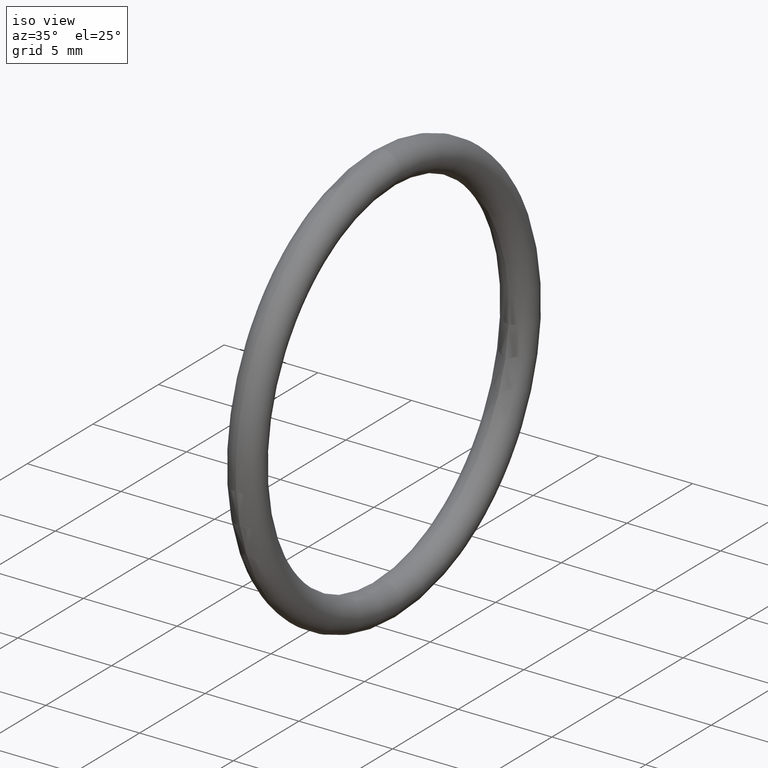
[diagram: clean part render]
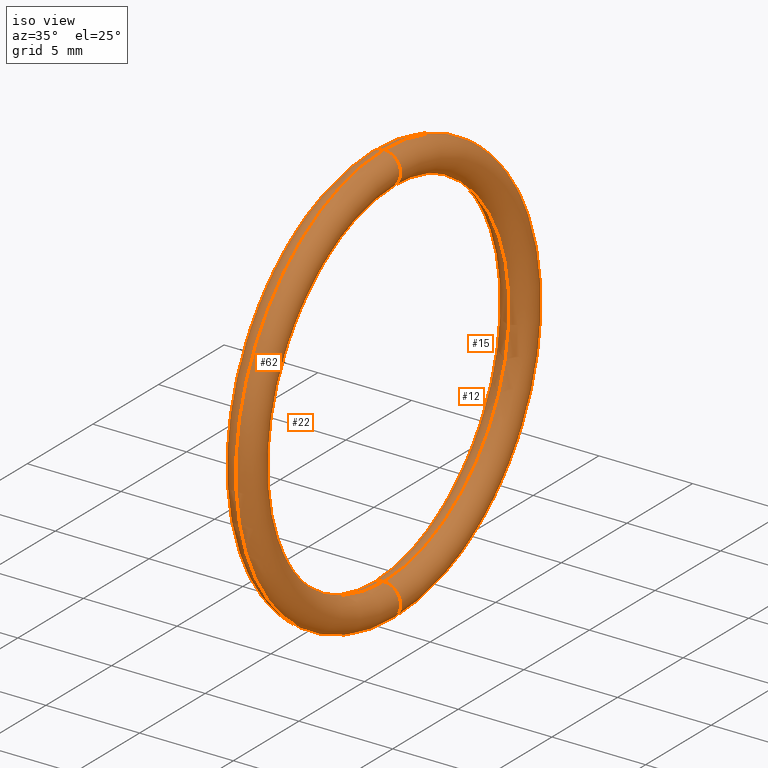
[diagram: same view with one multi-face feature highlighted, each face labeled with its STEP entity id]
A machine part, iso view. The highlighted faces form ONE feature: a constant-radius fillet chain: 4 tangent blend faces with common blend radius 0.889 mm. The faces share edges in the B-rep.
Their STEP definitions:
[1] entity #12 (Torus):
#2 = DIRECTION ( 'NONE',  ( 0.0000000000000000000, 0.0000000000000000000, 1.000000000000000000 ) ) ;
#3 = DIRECTION ( 'NONE',  ( -1.000000000000000000, 0.0000000000000000000, 0.0000000000000000000 ) ) ;
#4 = AXIS2_PLACEMENT_3D ( 'NONE', #11, #3, #2 ) ;
#5 = CIRCLE ( 'NONE', #4, 0.3750000000000000600 ) ;
#11 = CARTESIAN_POINT ( 'NONE',  ( 0.1000000000000000600, 0.0000000000000000000, 0.0000000000000000000 ) ) ;
#12 = ADVANCED_FACE ( 'NONE', ( #95 ), #92, .T. ) ;
#13 = EDGE_LOOP ( 'NONE', ( #31, #30, #105, #106 ) ) ;
#14 = VERTEX_POINT ( 'NONE', #93 ) ;
#18 = EDGE_CURVE ( 'NONE', #14, #109, #5, .T. ) ;
#29 = VERTEX_POINT ( 'NONE', #69 ) ;
#30 = ORIENTED_EDGE ( 'NONE', *, *, #99, .T. ) ;
#31 = ORIENTED_EDGE ( 'NONE', *, *, #100, .F. ) ;
#34 = CARTESIAN_POINT ( 'NONE',  ( 0.1000000000000000600, 5.449678256205721400E-017, -0.4449999999999999500 ) ) ;
#35 = CARTESIAN_POINT ( 'NONE',  ( 0.1000000000000000600, 4.592425496802574200E-017, -0.3750000000000000600 ) ) ;
#41 = DIRECTION ( 'NONE',  ( 0.0000000000000000000, 0.0000000000000000000, -1.000000000000000000 ) ) ;
#42 = DIRECTION ( 'NONE',  ( 0.0000000000000000000, -1.000000000000000000, 0.0000000000000000000 ) ) ;
#43 = CARTESIAN_POINT ( 'NONE',  ( 0.1000000000000000600, 0.0000000000000000000, 0.4099999999999999800 ) ) ;
#44 = AXIS2_PLACEMENT_3D ( 'NONE', #43, #42, #41 ) ;
#45 = CIRCLE ( 'NONE', #44, 0.03499999999999996900 ) ;
#46 = DIRECTION ( 'NONE',  ( 0.0000000000000000000, 0.0000000000000000000, 1.000000000000000000 ) ) ;
#47 = DIRECTION ( 'NONE',  ( -1.000000000000000000, 0.0000000000000000000, 0.0000000000000000000 ) ) ;
#48 = CARTESIAN_POINT ( 'NONE',  ( 0.1000000000000000600, 0.0000000000000000000, 0.0000000000000000000 ) ) ;
#49 = AXIS2_PLACEMENT_3D ( 'NONE', #48, #47, #46 ) ;
#50 = CIRCLE ( 'NONE', #49, 0.4449999999999999500 ) ;
#60 = EDGE_CURVE ( 'NONE', #110, #109, #81, .T. ) ;
#69 = CARTESIAN_POINT ( 'NONE',  ( 0.1000000000000000600, 0.0000000000000000000, 0.4449999999999999500 ) ) ;
#77 = DIRECTION ( 'NONE',  ( 0.0000000000000000000, -1.224646799147354900E-016, 1.000000000000000000 ) ) ;
#78 = DIRECTION ( 'NONE',  ( 0.0000000000000000000, 1.000000000000000000, 1.224646799147353200E-016 ) ) ;
#79 = CARTESIAN_POINT ( 'NONE',  ( 0.1000000000000000600, 5.021051876504148100E-017, -0.4099999999999999800 ) ) ;
#80 = AXIS2_PLACEMENT_3D ( 'NONE', #79, #78, #77 ) ;
#81 = CIRCLE ( 'NONE', #80, 0.03499999999999996900 ) ;
#89 = DIRECTION ( 'NONE',  ( 0.0000000000000000000, 0.0000000000000000000, 1.000000000000000000 ) ) ;
#90 = DIRECTION ( 'NONE',  ( -1.000000000000000000, 0.0000000000000000000, 0.0000000000000000000 ) ) ;
#91 = AXIS2_PLACEMENT_3D ( 'NONE', #94, #90, #89 ) ;
#92 = TOROIDAL_SURFACE ( 'NONE', #91, 0.4099999999999999800, 0.03499999999999998300 ) ;
#93 = CARTESIAN_POINT ( 'NONE',  ( 0.1000000000000000600, 0.0000000000000000000, 0.3750000000000000600 ) ) ;
#94 = CARTESIAN_POINT ( 'NONE',  ( 0.1000000000000000600, 0.0000000000000000000, 0.0000000000000000000 ) ) ;
#95 = FACE_OUTER_BOUND ( 'NONE', #13, .T. ) ;
#99 = EDGE_CURVE ( 'NONE', #29, #110, #50, .T. ) ;
#100 = EDGE_CURVE ( 'NONE', #29, #14, #45, .T. ) ;
#105 = ORIENTED_EDGE ( 'NONE', *, *, #60, .T. ) ;
#106 = ORIENTED_EDGE ( 'NONE', *, *, #18, .F. ) ;
#109 = VERTEX_POINT ( 'NONE', #35 ) ;
#110 = VERTEX_POINT ( 'NONE', #34 ) ;
[2] entity #15 (Torus):
#1 = CARTESIAN_POINT ( 'NONE',  ( 0.1000000000000000600, 5.021051876504148100E-017, -0.4099999999999999800 ) ) ;
#2 = DIRECTION ( 'NONE',  ( 0.0000000000000000000, 0.0000000000000000000, 1.000000000000000000 ) ) ;
#3 = DIRECTION ( 'NONE',  ( -1.000000000000000000, 0.0000000000000000000, 0.0000000000000000000 ) ) ;
#4 = AXIS2_PLACEMENT_3D ( 'NONE', #11, #3, #2 ) ;
#5 = CIRCLE ( 'NONE', #4, 0.3750000000000000600 ) ;
#11 = CARTESIAN_POINT ( 'NONE',  ( 0.1000000000000000600, 0.0000000000000000000, 0.0000000000000000000 ) ) ;
#14 = VERTEX_POINT ( 'NONE', #93 ) ;
#15 = ADVANCED_FACE ( 'NONE', ( #88 ), #86, .T. ) ;
#18 = EDGE_CURVE ( 'NONE', #14, #109, #5, .T. ) ;
#19 = ORIENTED_EDGE ( 'NONE', *, *, #18, .T. ) ;
#20 = ORIENTED_EDGE ( 'NONE', *, *, #21, .T. ) ;
#21 = EDGE_CURVE ( 'NONE', #109, #110, #74, .T. ) ;
#29 = VERTEX_POINT ( 'NONE', #69 ) ;
#34 = CARTESIAN_POINT ( 'NONE',  ( 0.1000000000000000600, 5.449678256205721400E-017, -0.4449999999999999500 ) ) ;
#35 = CARTESIAN_POINT ( 'NONE',  ( 0.1000000000000000600, 4.592425496802574200E-017, -0.3750000000000000600 ) ) ;
#36 = DIRECTION ( 'NONE',  ( 0.0000000000000000000, 0.0000000000000000000, -1.000000000000000000 ) ) ;
#37 = DIRECTION ( 'NONE',  ( 0.0000000000000000000, -1.000000000000000000, 0.0000000000000000000 ) ) ;
#38 = CARTESIAN_POINT ( 'NONE',  ( 0.1000000000000000600, 0.0000000000000000000, 0.4099999999999999800 ) ) ;
#39 = AXIS2_PLACEMENT_3D ( 'NONE', #38, #37, #36 ) ;
#40 = CIRCLE ( 'NONE', #39, 0.03499999999999996900 ) ;
#46 = DIRECTION ( 'NONE',  ( 0.0000000000000000000, 0.0000000000000000000, 1.000000000000000000 ) ) ;
#47 = DIRECTION ( 'NONE',  ( -1.000000000000000000, 0.0000000000000000000, 0.0000000000000000000 ) ) ;
#48 = CARTESIAN_POINT ( 'NONE',  ( 0.1000000000000000600, 0.0000000000000000000, 0.0000000000000000000 ) ) ;
#49 = AXIS2_PLACEMENT_3D ( 'NONE', #48, #47, #46 ) ;
#50 = CIRCLE ( 'NONE', #49, 0.4449999999999999500 ) ;
#69 = CARTESIAN_POINT ( 'NONE',  ( 0.1000000000000000600, 0.0000000000000000000, 0.4449999999999999500 ) ) ;
#71 = DIRECTION ( 'NONE',  ( 0.0000000000000000000, -1.224646799147354900E-016, 1.000000000000000000 ) ) ;
#72 = DIRECTION ( 'NONE',  ( 0.0000000000000000000, 1.000000000000000000, 1.224646799147353200E-016 ) ) ;
#73 = AXIS2_PLACEMENT_3D ( 'NONE', #1, #72, #71 ) ;
#74 = CIRCLE ( 'NONE', #73, 0.03499999999999996900 ) ;
#83 = DIRECTION ( 'NONE',  ( 0.0000000000000000000, 0.0000000000000000000, 1.000000000000000000 ) ) ;
#84 = DIRECTION ( 'NONE',  ( -1.000000000000000000, 0.0000000000000000000, 0.0000000000000000000 ) ) ;
#85 = AXIS2_PLACEMENT_3D ( 'NONE', #87, #84, #83 ) ;
#86 = TOROIDAL_SURFACE ( 'NONE', #85, 0.4099999999999999800, 0.03499999999999998300 ) ;
#87 = CARTESIAN_POINT ( 'NONE',  ( 0.1000000000000000600, 0.0000000000000000000, 0.0000000000000000000 ) ) ;
#88 = FACE_OUTER_BOUND ( 'NONE', #107, .T. ) ;
#93 = CARTESIAN_POINT ( 'NONE',  ( 0.1000000000000000600, 0.0000000000000000000, 0.3750000000000000600 ) ) ;
#99 = EDGE_CURVE ( 'NONE', #29, #110, #50, .T. ) ;
#101 = ORIENTED_EDGE ( 'NONE', *, *, #99, .F. ) ;
#102 = ORIENTED_EDGE ( 'NONE', *, *, #103, .F. ) ;
#103 = EDGE_CURVE ( 'NONE', #14, #29, #40, .T. ) ;
#107 = EDGE_LOOP ( 'NONE', ( #101, #102, #19, #20 ) ) ;
#109 = VERTEX_POINT ( 'NONE', #35 ) ;
#110 = VERTEX_POINT ( 'NONE', #34 ) ;
[3] entity #22 (Torus):
#1 = CARTESIAN_POINT ( 'NONE',  ( 0.1000000000000000600, 5.021051876504148100E-017, -0.4099999999999999800 ) ) ;
#6 = DIRECTION ( 'NONE',  ( 0.0000000000000000000, 0.0000000000000000000, 1.000000000000000000 ) ) ;
#7 = DIRECTION ( 'NONE',  ( -1.000000000000000000, 0.0000000000000000000, 0.0000000000000000000 ) ) ;
#8 = CARTESIAN_POINT ( 'NONE',  ( 0.1000000000000000600, 0.0000000000000000000, 0.0000000000000000000 ) ) ;
#9 = AXIS2_PLACEMENT_3D ( 'NONE', #8, #7, #6 ) ;
#10 = CIRCLE ( 'NONE', #9, 0.3750000000000000600 ) ;
#14 = VERTEX_POINT ( 'NONE', #93 ) ;
#16 = EDGE_CURVE ( 'NONE', #109, #14, #10, .T. ) ;
#21 = EDGE_CURVE ( 'NONE', #109, #110, #74, .T. ) ;
#22 = ADVANCED_FACE ( 'NONE', ( #75 ), #68, .T. ) ;
#23 = EDGE_LOOP ( 'NONE', ( #24, #25, #26, #27 ) ) ;
#24 = ORIENTED_EDGE ( 'NONE', *, *, #98, .F. ) ;
#25 = ORIENTED_EDGE ( 'NONE', *, *, #21, .F. ) ;
#26 = ORIENTED_EDGE ( 'NONE', *, *, #16, .T. ) ;
#27 = ORIENTED_EDGE ( 'NONE', *, *, #103, .T. ) ;
#29 = VERTEX_POINT ( 'NONE', #69 ) ;
#34 = CARTESIAN_POINT ( 'NONE',  ( 0.1000000000000000600, 5.449678256205721400E-017, -0.4449999999999999500 ) ) ;
#35 = CARTESIAN_POINT ( 'NONE',  ( 0.1000000000000000600, 4.592425496802574200E-017, -0.3750000000000000600 ) ) ;
#36 = DIRECTION ( 'NONE',  ( 0.0000000000000000000, 0.0000000000000000000, -1.000000000000000000 ) ) ;
#37 = DIRECTION ( 'NONE',  ( 0.0000000000000000000, -1.000000000000000000, 0.0000000000000000000 ) ) ;
#38 = CARTESIAN_POINT ( 'NONE',  ( 0.1000000000000000600, 0.0000000000000000000, 0.4099999999999999800 ) ) ;
#39 = AXIS2_PLACEMENT_3D ( 'NONE', #38, #37, #36 ) ;
#40 = CIRCLE ( 'NONE', #39, 0.03499999999999996900 ) ;
#51 = DIRECTION ( 'NONE',  ( 0.0000000000000000000, 0.0000000000000000000, 1.000000000000000000 ) ) ;
#52 = DIRECTION ( 'NONE',  ( -1.000000000000000000, 0.0000000000000000000, 0.0000000000000000000 ) ) ;
#53 = CARTESIAN_POINT ( 'NONE',  ( 0.1000000000000000600, 0.0000000000000000000, 0.0000000000000000000 ) ) ;
#54 = AXIS2_PLACEMENT_3D ( 'NONE', #53, #52, #51 ) ;
#55 = CIRCLE ( 'NONE', #54, 0.4449999999999999500 ) ;
#65 = DIRECTION ( 'NONE',  ( 0.0000000000000000000, 0.0000000000000000000, 1.000000000000000000 ) ) ;
#66 = DIRECTION ( 'NONE',  ( -1.000000000000000000, 0.0000000000000000000, 0.0000000000000000000 ) ) ;
#67 = AXIS2_PLACEMENT_3D ( 'NONE', #70, #66, #65 ) ;
#68 = TOROIDAL_SURFACE ( 'NONE', #67, 0.4099999999999999800, 0.03499999999999998300 ) ;
#69 = CARTESIAN_POINT ( 'NONE',  ( 0.1000000000000000600, 0.0000000000000000000, 0.4449999999999999500 ) ) ;
#70 = CARTESIAN_POINT ( 'NONE',  ( 0.1000000000000000600, 0.0000000000000000000, 0.0000000000000000000 ) ) ;
#71 = DIRECTION ( 'NONE',  ( 0.0000000000000000000, -1.224646799147354900E-016, 1.000000000000000000 ) ) ;
#72 = DIRECTION ( 'NONE',  ( 0.0000000000000000000, 1.000000000000000000, 1.224646799147353200E-016 ) ) ;
#73 = AXIS2_PLACEMENT_3D ( 'NONE', #1, #72, #71 ) ;
#74 = CIRCLE ( 'NONE', #73, 0.03499999999999996900 ) ;
#75 = FACE_OUTER_BOUND ( 'NONE', #23, .T. ) ;
#93 = CARTESIAN_POINT ( 'NONE',  ( 0.1000000000000000600, 0.0000000000000000000, 0.3750000000000000600 ) ) ;
#98 = EDGE_CURVE ( 'NONE', #110, #29, #55, .T. ) ;
#103 = EDGE_CURVE ( 'NONE', #14, #29, #40, .T. ) ;
#109 = VERTEX_POINT ( 'NONE', #35 ) ;
#110 = VERTEX_POINT ( 'NONE', #34 ) ;
[4] entity #62 (Torus):
#6 = DIRECTION ( 'NONE',  ( 0.0000000000000000000, 0.0000000000000000000, 1.000000000000000000 ) ) ;
#7 = DIRECTION ( 'NONE',  ( -1.000000000000000000, 0.0000000000000000000, 0.0000000000000000000 ) ) ;
#8 = CARTESIAN_POINT ( 'NONE',  ( 0.1000000000000000600, 0.0000000000000000000, 0.0000000000000000000 ) ) ;
#9 = AXIS2_PLACEMENT_3D ( 'NONE', #8, #7, #6 ) ;
#10 = CIRCLE ( 'NONE', #9, 0.3750000000000000600 ) ;
#14 = VERTEX_POINT ( 'NONE', #93 ) ;
#16 = EDGE_CURVE ( 'NONE', #109, #14, #10, .T. ) ;
#17 = ORIENTED_EDGE ( 'NONE', *, *, #16, .F. ) ;
#29 = VERTEX_POINT ( 'NONE', #69 ) ;
#34 = CARTESIAN_POINT ( 'NONE',  ( 0.1000000000000000600, 5.449678256205721400E-017, -0.4449999999999999500 ) ) ;
#35 = CARTESIAN_POINT ( 'NONE',  ( 0.1000000000000000600, 4.592425496802574200E-017, -0.3750000000000000600 ) ) ;
#41 = DIRECTION ( 'NONE',  ( 0.0000000000000000000, 0.0000000000000000000, -1.000000000000000000 ) ) ;
#42 = DIRECTION ( 'NONE',  ( 0.0000000000000000000, -1.000000000000000000, 0.0000000000000000000 ) ) ;
#43 = CARTESIAN_POINT ( 'NONE',  ( 0.1000000000000000600, 0.0000000000000000000, 0.4099999999999999800 ) ) ;
#44 = AXIS2_PLACEMENT_3D ( 'NONE', #43, #42, #41 ) ;
#45 = CIRCLE ( 'NONE', #44, 0.03499999999999996900 ) ;
#51 = DIRECTION ( 'NONE',  ( 0.0000000000000000000, 0.0000000000000000000, 1.000000000000000000 ) ) ;
#52 = DIRECTION ( 'NONE',  ( -1.000000000000000000, 0.0000000000000000000, 0.0000000000000000000 ) ) ;
#53 = CARTESIAN_POINT ( 'NONE',  ( 0.1000000000000000600, 0.0000000000000000000, 0.0000000000000000000 ) ) ;
#54 = AXIS2_PLACEMENT_3D ( 'NONE', #53, #52, #51 ) ;
#55 = CIRCLE ( 'NONE', #54, 0.4449999999999999500 ) ;
#56 = DIRECTION ( 'NONE',  ( 0.0000000000000000000, 0.0000000000000000000, 1.000000000000000000 ) ) ;
#57 = DIRECTION ( 'NONE',  ( -1.000000000000000000, 0.0000000000000000000, 0.0000000000000000000 ) ) ;
#58 = AXIS2_PLACEMENT_3D ( 'NONE', #76, #57, #56 ) ;
#59 = TOROIDAL_SURFACE ( 'NONE', #58, 0.4099999999999999800, 0.03499999999999998300 ) ;
#60 = EDGE_CURVE ( 'NONE', #110, #109, #81, .T. ) ;
#62 = ADVANCED_FACE ( 'NONE', ( #82 ), #59, .T. ) ;
#63 = EDGE_LOOP ( 'NONE', ( #111, #108, #104, #17 ) ) ;
#69 = CARTESIAN_POINT ( 'NONE',  ( 0.1000000000000000600, 0.0000000000000000000, 0.4449999999999999500 ) ) ;
#76 = CARTESIAN_POINT ( 'NONE',  ( 0.1000000000000000600, 0.0000000000000000000, 0.0000000000000000000 ) ) ;
#77 = DIRECTION ( 'NONE',  ( 0.0000000000000000000, -1.224646799147354900E-016, 1.000000000000000000 ) ) ;
#78 = DIRECTION ( 'NONE',  ( 0.0000000000000000000, 1.000000000000000000, 1.224646799147353200E-016 ) ) ;
#79 = CARTESIAN_POINT ( 'NONE',  ( 0.1000000000000000600, 5.021051876504148100E-017, -0.4099999999999999800 ) ) ;
#80 = AXIS2_PLACEMENT_3D ( 'NONE', #79, #78, #77 ) ;
#81 = CIRCLE ( 'NONE', #80, 0.03499999999999996900 ) ;
#82 = FACE_OUTER_BOUND ( 'NONE', #63, .T. ) ;
#93 = CARTESIAN_POINT ( 'NONE',  ( 0.1000000000000000600, 0.0000000000000000000, 0.3750000000000000600 ) ) ;
#98 = EDGE_CURVE ( 'NONE', #110, #29, #55, .T. ) ;
#100 = EDGE_CURVE ( 'NONE', #29, #14, #45, .T. ) ;
#104 = ORIENTED_EDGE ( 'NONE', *, *, #100, .T. ) ;
#108 = ORIENTED_EDGE ( 'NONE', *, *, #98, .T. ) ;
#109 = VERTEX_POINT ( 'NONE', #35 ) ;
#110 = VERTEX_POINT ( 'NONE', #34 ) ;
#111 = ORIENTED_EDGE ( 'NONE', *, *, #60, .F. ) ;